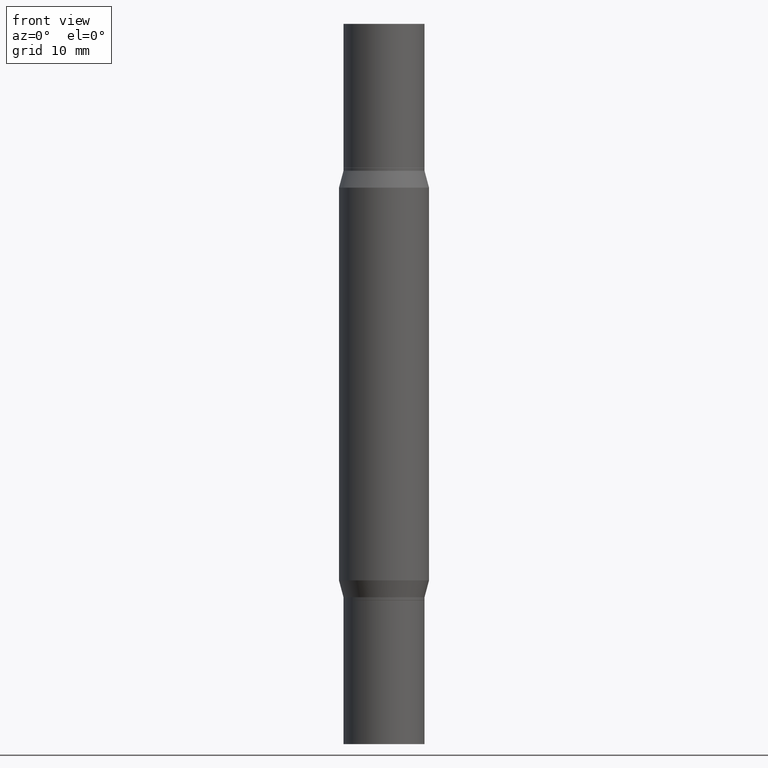
[diagram: clean part render]
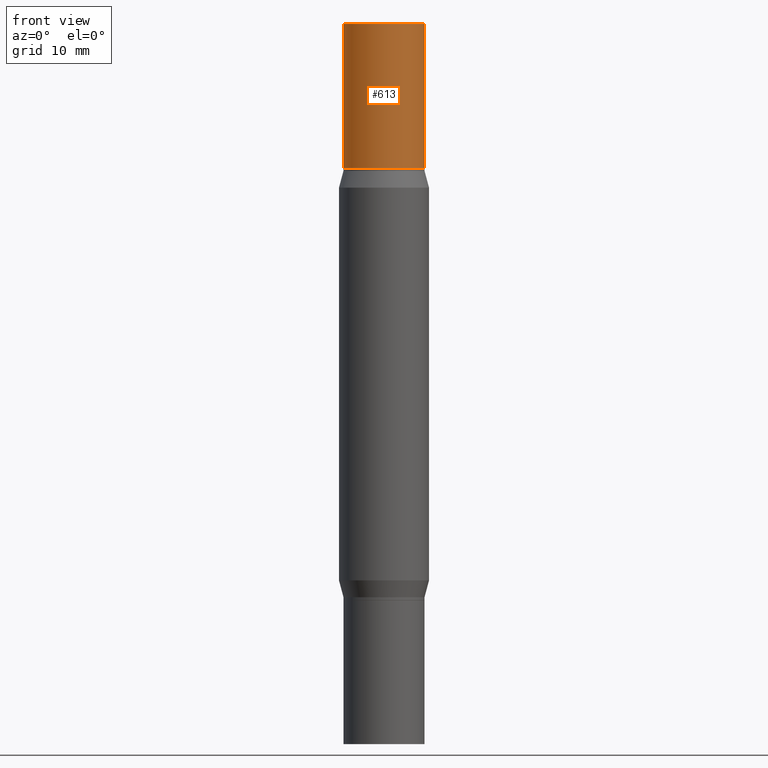
[diagram: same view with one face highlighted and labeled with its STEP entity id]
A machine part, front view. The second image highlights one B-rep face of the part: STEP entity #613.
In plain terms, the highlighted cylindrical surface (partial cylindrical patch) has radius 3.5712 mm, axis along (-0, -0, -1).
Its self-contained STEP definition (entity closure, byte-faithful):
#48 = EDGE_LOOP ( 'NONE', ( #530, #963, #205, #263 ) ) ;
#58 = AXIS2_PLACEMENT_3D ( 'NONE', #825, #453, #700 ) ;
#75 = AXIS2_PLACEMENT_3D ( 'NONE', #515, #291, #286 ) ;
#96 = LINE ( 'NONE', #397, #744 ) ;
#104 = DIRECTION ( 'NONE',  ( 1.000000000000000000, -6.982962677686266711E-15, 0.000000000000000000 ) ) ;
#107 = CIRCLE ( 'NONE', #75, 0.1406000000000000028 ) ;
#205 = ORIENTED_EDGE ( 'NONE', *, *, #824, .T. ) ;
#215 = LINE ( 'NONE', #520, #553 ) ;
#256 = DIRECTION ( 'NONE',  ( 2.445468806185136597E-29, 3.491805094961124077E-15, 1.000000000000000000 ) ) ;
#263 = ORIENTED_EDGE ( 'NONE', *, *, #355, .F. ) ;
#286 = DIRECTION ( 'NONE',  ( 1.000000000000000000, -6.982962677686265133E-15, 0.000000000000000000 ) ) ;
#291 = DIRECTION ( 'NONE',  ( 2.445468806185136597E-29, 3.491805094961124077E-15, 1.000000000000000000 ) ) ;
#355 = EDGE_CURVE ( 'NONE', #649, #746, #96, .T. ) ;
#387 = CARTESIAN_POINT ( 'NONE',  ( 0.1406000000000000028, -9.813998573352146072E-16, 5.463695987328526437E-16 ) ) ;
#397 = CARTESIAN_POINT ( 'NONE',  ( 0.1406000000000000028, -9.710912594738023419E-15, -2.499999999999999556 ) ) ;
#398 = CARTESIAN_POINT ( 'NONE',  ( -0.1406000000000000028, 9.203943989387194407E-17, -0.4999999999999993339 ) ) ;
#443 = CARTESIAN_POINT ( 'NONE',  ( -0.1406000000000000028, 9.203943989387182081E-17, 5.463695987328557991E-16 ) ) ;
#448 = EDGE_CURVE ( 'NONE', #826, #649, #923, .T. ) ;
#453 = DIRECTION ( 'NONE',  ( -2.445468806185136597E-29, -3.491805094961124077E-15, -1.000000000000000000 ) ) ;
#490 = CARTESIAN_POINT ( 'NONE',  ( 0.1406000000000000028, -2.727302404815774476E-15, -0.4999999999999993339 ) ) ;
#515 = CARTESIAN_POINT ( 'NONE',  ( 4.890937612370273754E-29, -1.745497852333085568E-15, -0.4999999999999993339 ) ) ;
#520 = CARTESIAN_POINT ( 'NONE',  ( -0.1406000000000000028, -7.764522023768658166E-15, -2.499999999999999556 ) ) ;
#526 = CYLINDRICAL_SURFACE ( 'NONE', #58, 0.1406000000000000028 ) ;
#530 = ORIENTED_EDGE ( 'NONE', *, *, #448, .F. ) ;
#553 = VECTOR ( 'NONE', #818, 39.37007874015748143 ) ;
#559 = CARTESIAN_POINT ( 'NONE',  ( 6.113672015462842613E-29, 4.046951474745467748E-19, 5.463695987328526437E-16 ) ) ;
#613 = ADVANCED_FACE ( 'NONE', ( #900 ), #526, .T. ) ;
#649 = VERTEX_POINT ( 'NONE', #387 ) ;
#670 = VERTEX_POINT ( 'NONE', #398 ) ;
#700 = DIRECTION ( 'NONE',  ( 1.000000000000000000, -6.982962677686265133E-15, 0.000000000000000000 ) ) ;
#702 = DIRECTION ( 'NONE',  ( -2.445468806185136877E-29, -3.491805094961123683E-15, -1.000000000000000000 ) ) ;
#744 = VECTOR ( 'NONE', #702, 39.37007874015748143 ) ;
#746 = VERTEX_POINT ( 'NONE', #490 ) ;
#818 = DIRECTION ( 'NONE',  ( -2.445468806185136877E-29, -3.491805094961123683E-15, -1.000000000000000000 ) ) ;
#824 = EDGE_CURVE ( 'NONE', #670, #746, #107, .T. ) ;
#825 = CARTESIAN_POINT ( 'NONE',  ( 0.000000000000000000, -8.729108042255335103E-15, -2.499999999999999556 ) ) ;
#826 = VERTEX_POINT ( 'NONE', #443 ) ;
#900 = FACE_OUTER_BOUND ( 'NONE', #48, .T. ) ;
#923 = CIRCLE ( 'NONE', #980, 0.1406000000000000028 ) ;
#963 = ORIENTED_EDGE ( 'NONE', *, *, #970, .T. ) ;
#970 = EDGE_CURVE ( 'NONE', #826, #670, #215, .T. ) ;
#980 = AXIS2_PLACEMENT_3D ( 'NONE', #559, #256, #104 ) ;